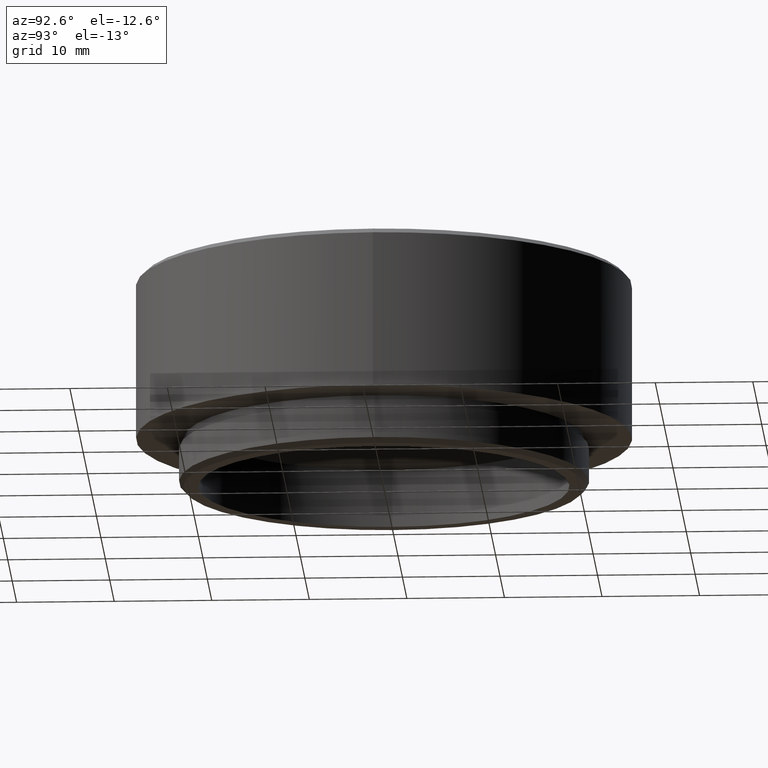
[diagram: clean part render]
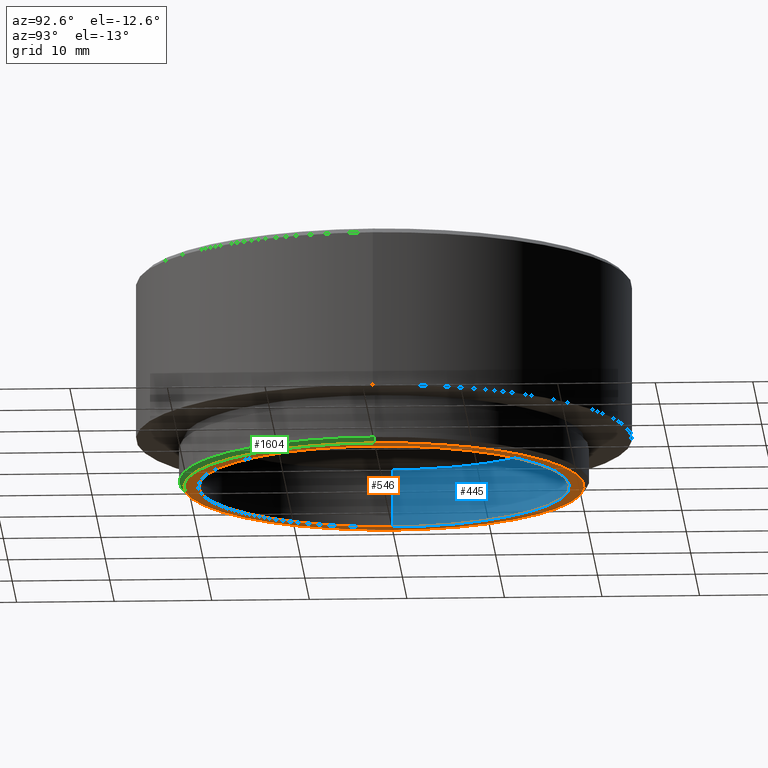
[diagram: same view with three faces highlighted in distinct colors, each labeled with its STEP entity id]
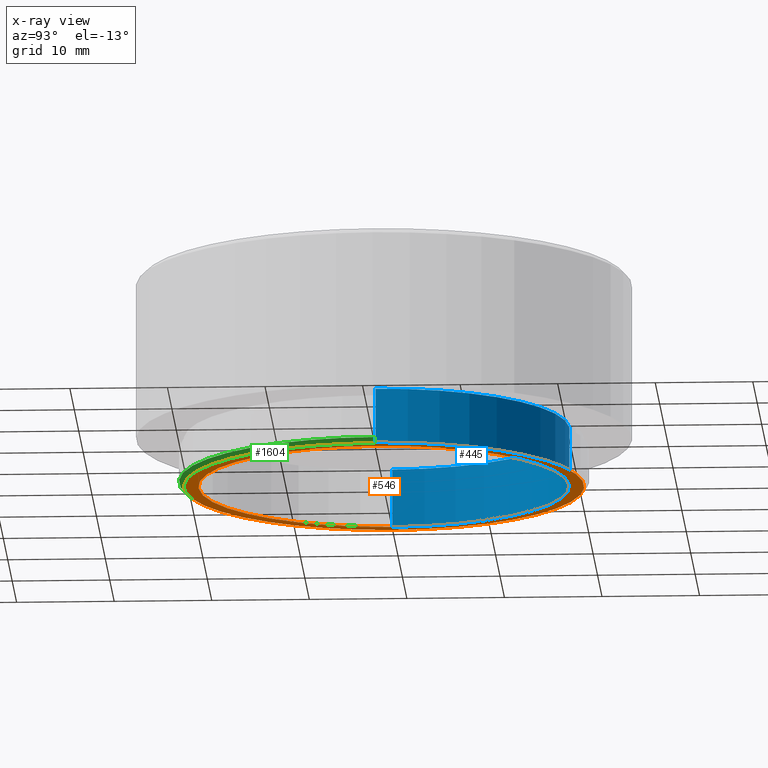
[diagram: x-ray of the same camera — body ghosted, the three highlighted faces saturated]
A machine part, auxiliary view with three faces highlighted in distinct colors.
The next image is the same camera in x-ray (body ghosted, the three faces saturated) — at least one of them is partly hidden behind the body in this view.
Their STEP definitions:

[orange] entity #546 — the highlighted planar face has unit normal (0, 0, 1).
#44 = AXIS2_PLACEMENT_3D ( 'NONE', #636, #1412, #1169 ) ;
#123 = DIRECTION ( 'NONE',  ( 1.000000000000000000, 0.000000000000000000, 0.000000000000000000 ) ) ;
#156 = ORIENTED_EDGE ( 'NONE', *, *, #462, .T. ) ;
#184 = DIRECTION ( 'NONE',  ( 0.000000000000000000, 0.000000000000000000, 1.000000000000000000 ) ) ;
#194 = VERTEX_POINT ( 'NONE', #1596 ) ;
#273 = CARTESIAN_POINT ( 'NONE',  ( 0.000000000000000000, 0.000000000000000000, 0.000000000000000000 ) ) ;
#324 = CARTESIAN_POINT ( 'NONE',  ( 0.000000000000000000, 0.000000000000000000, 0.000000000000000000 ) ) ;
#362 = FACE_BOUND ( 'NONE', #1002, .T. ) ;
#380 = ORIENTED_EDGE ( 'NONE', *, *, #452, .T. ) ;
#418 = AXIS2_PLACEMENT_3D ( 'NONE', #273, #1326, #123 ) ;
#449 = DIRECTION ( 'NONE',  ( 1.000000000000000000, 0.000000000000000000, 0.000000000000000000 ) ) ;
#452 = EDGE_CURVE ( 'NONE', #1217, #194, #1544, .T. ) ;
#462 = EDGE_CURVE ( 'NONE', #1559, #1170, #572, .T. ) ;
#519 = CARTESIAN_POINT ( 'NONE',  ( 19.00000000000000000, 2.326828918379970970E-15, 0.000000000000000000 ) ) ;
#546 = ADVANCED_FACE ( 'NONE', ( #1304, #362 ), #906, .F. ) ;
#572 = CIRCLE ( 'NONE', #661, 20.49999999999999645 ) ;
#636 = CARTESIAN_POINT ( 'NONE',  ( 0.000000000000000000, 0.000000000000000000, 0.000000000000000000 ) ) ;
#661 = AXIS2_PLACEMENT_3D ( 'NONE', #324, #1250, #981 ) ;
#692 = EDGE_LOOP ( 'NONE', ( #156, #867 ) ) ;
#703 = DIRECTION ( 'NONE',  ( 1.000000000000000000, 0.000000000000000000, 0.000000000000000000 ) ) ;
#867 = ORIENTED_EDGE ( 'NONE', *, *, #1697, .T. ) ;
#904 = CIRCLE ( 'NONE', #418, 20.49999999999999645 ) ;
#906 = PLANE ( 'NONE',  #44 ) ;
#962 = ORIENTED_EDGE ( 'NONE', *, *, #1121, .T. ) ;
#981 = DIRECTION ( 'NONE',  ( 1.000000000000000000, 0.000000000000000000, 0.000000000000000000 ) ) ;
#1002 = EDGE_LOOP ( 'NONE', ( #962, #380 ) ) ;
#1031 = AXIS2_PLACEMENT_3D ( 'NONE', #1669, #184, #703 ) ;
#1121 = EDGE_CURVE ( 'NONE', #194, #1217, #1622, .T. ) ;
#1169 = DIRECTION ( 'NONE',  ( 1.000000000000000000, 0.000000000000000000, -0.000000000000000000 ) ) ;
#1170 = VERTEX_POINT ( 'NONE', #1599 ) ;
#1217 = VERTEX_POINT ( 'NONE', #519 ) ;
#1250 = DIRECTION ( 'NONE',  ( -0.000000000000000000, -0.000000000000000000, -1.000000000000000000 ) ) ;
#1304 = FACE_OUTER_BOUND ( 'NONE', #692, .T. ) ;
#1326 = DIRECTION ( 'NONE',  ( -0.000000000000000000, -0.000000000000000000, -1.000000000000000000 ) ) ;
#1331 = CARTESIAN_POINT ( 'NONE',  ( 0.000000000000000000, 0.000000000000000000, 0.000000000000000000 ) ) ;
#1412 = DIRECTION ( 'NONE',  ( 0.000000000000000000, 0.000000000000000000, 1.000000000000000000 ) ) ;
#1527 = CARTESIAN_POINT ( 'NONE',  ( 20.49999999999999645, 0.000000000000000000, 0.000000000000000000 ) ) ;
#1544 = CIRCLE ( 'NONE', #1031, 19.00000000000000000 ) ;
#1559 = VERTEX_POINT ( 'NONE', #1527 ) ;
#1595 = AXIS2_PLACEMENT_3D ( 'NONE', #1331, #1672, #449 ) ;
#1596 = CARTESIAN_POINT ( 'NONE',  ( -19.00000000000000000, 0.000000000000000000, 0.000000000000000000 ) ) ;
#1599 = CARTESIAN_POINT ( 'NONE',  ( -20.49999999999999645, 2.541142108230757480E-15, 0.000000000000000000 ) ) ;
#1622 = CIRCLE ( 'NONE', #1595, 19.00000000000000000 ) ;
#1669 = CARTESIAN_POINT ( 'NONE',  ( 0.000000000000000000, 0.000000000000000000, 0.000000000000000000 ) ) ;
#1672 = DIRECTION ( 'NONE',  ( 0.000000000000000000, 0.000000000000000000, 1.000000000000000000 ) ) ;
#1697 = EDGE_CURVE ( 'NONE', #1170, #1559, #904, .T. ) ;

[blue] entity #445 — the highlighted cylindrical surface (partial cylindrical patch) has radius 19 mm, axis along (-0, -0, -1).
#1 = DIRECTION ( 'NONE',  ( 1.000000000000000000, 0.000000000000000000, 0.000000000000000000 ) ) ;
#16 = ORIENTED_EDGE ( 'NONE', *, *, #58, .F. ) ;
#58 = EDGE_CURVE ( 'NONE', #328, #1217, #200, .T. ) ;
#128 = ORIENTED_EDGE ( 'NONE', *, *, #452, .F. ) ;
#176 = DIRECTION ( 'NONE',  ( -1.000000000000000000, 0.000000000000000000, 0.000000000000000000 ) ) ;
#184 = DIRECTION ( 'NONE',  ( 0.000000000000000000, 0.000000000000000000, 1.000000000000000000 ) ) ;
#194 = VERTEX_POINT ( 'NONE', #1596 ) ;
#200 = LINE ( 'NONE', #729, #1308 ) ;
#242 = CIRCLE ( 'NONE', #319, 19.00000000000000000 ) ;
#304 = LINE ( 'NONE', #568, #603 ) ;
#319 = AXIS2_PLACEMENT_3D ( 'NONE', #1744, #933, #1 ) ;
#328 = VERTEX_POINT ( 'NONE', #1700 ) ;
#445 = ADVANCED_FACE ( 'NONE', ( #861 ), #579, .F. ) ;
#452 = EDGE_CURVE ( 'NONE', #1217, #194, #1544, .T. ) ;
#519 = CARTESIAN_POINT ( 'NONE',  ( 19.00000000000000000, 2.326828918379970970E-15, 0.000000000000000000 ) ) ;
#568 = CARTESIAN_POINT ( 'NONE',  ( -19.00000000000000000, 0.000000000000000000, 21.50000000000000000 ) ) ;
#579 = CYLINDRICAL_SURFACE ( 'NONE', #631, 19.00000000000000000 ) ;
#603 = VECTOR ( 'NONE', #1374, 1000.000000000000000 ) ;
#631 = AXIS2_PLACEMENT_3D ( 'NONE', #1530, #868, #176 ) ;
#703 = DIRECTION ( 'NONE',  ( 1.000000000000000000, 0.000000000000000000, 0.000000000000000000 ) ) ;
#728 = CARTESIAN_POINT ( 'NONE',  ( -19.00000000000000000, 0.000000000000000000, 5.999999999999998224 ) ) ;
#729 = CARTESIAN_POINT ( 'NONE',  ( 19.00000000000000000, 2.326828918379970970E-15, 21.50000000000000000 ) ) ;
#737 = EDGE_LOOP ( 'NONE', ( #16, #1485, #1687, #128 ) ) ;
#861 = FACE_OUTER_BOUND ( 'NONE', #737, .T. ) ;
#868 = DIRECTION ( 'NONE',  ( -0.000000000000000000, -0.000000000000000000, -1.000000000000000000 ) ) ;
#933 = DIRECTION ( 'NONE',  ( 0.000000000000000000, 0.000000000000000000, 1.000000000000000000 ) ) ;
#1031 = AXIS2_PLACEMENT_3D ( 'NONE', #1669, #184, #703 ) ;
#1199 = EDGE_CURVE ( 'NONE', #328, #1594, #242, .T. ) ;
#1217 = VERTEX_POINT ( 'NONE', #519 ) ;
#1276 = DIRECTION ( 'NONE',  ( -0.000000000000000000, -0.000000000000000000, -1.000000000000000000 ) ) ;
#1308 = VECTOR ( 'NONE', #1276, 1000.000000000000000 ) ;
#1374 = DIRECTION ( 'NONE',  ( -0.000000000000000000, -0.000000000000000000, -1.000000000000000000 ) ) ;
#1485 = ORIENTED_EDGE ( 'NONE', *, *, #1199, .T. ) ;
#1520 = EDGE_CURVE ( 'NONE', #1594, #194, #304, .T. ) ;
#1530 = CARTESIAN_POINT ( 'NONE',  ( 0.000000000000000000, 0.000000000000000000, 21.50000000000000000 ) ) ;
#1544 = CIRCLE ( 'NONE', #1031, 19.00000000000000000 ) ;
#1594 = VERTEX_POINT ( 'NONE', #728 ) ;
#1596 = CARTESIAN_POINT ( 'NONE',  ( -19.00000000000000000, 0.000000000000000000, 0.000000000000000000 ) ) ;
#1669 = CARTESIAN_POINT ( 'NONE',  ( 0.000000000000000000, 0.000000000000000000, 0.000000000000000000 ) ) ;
#1687 = ORIENTED_EDGE ( 'NONE', *, *, #1520, .T. ) ;
#1700 = CARTESIAN_POINT ( 'NONE',  ( 19.00000000000000000, 2.326828918379970970E-15, 5.999999999999998224 ) ) ;
#1744 = CARTESIAN_POINT ( 'NONE',  ( 0.000000000000000000, 0.000000000000000000, 5.999999999999998224 ) ) ;

[green] entity #1604 — the highlighted conical surface has half-angle 45 deg.
#18 = ORIENTED_EDGE ( 'NONE', *, *, #1500, .T. ) ;
#74 = AXIS2_PLACEMENT_3D ( 'NONE', #78, #1690, #360 ) ;
#78 = CARTESIAN_POINT ( 'NONE',  ( 0.000000000000000000, 0.000000000000000000, 0.000000000000000000 ) ) ;
#180 = CARTESIAN_POINT ( 'NONE',  ( 20.49999999999999645, 0.000000000000000000, 0.000000000000000000 ) ) ;
#213 = VERTEX_POINT ( 'NONE', #246 ) ;
#246 = CARTESIAN_POINT ( 'NONE',  ( -21.00000000000000000, 0.000000000000000000, 0.4999999999999970024 ) ) ;
#324 = CARTESIAN_POINT ( 'NONE',  ( 0.000000000000000000, 0.000000000000000000, 0.000000000000000000 ) ) ;
#337 = EDGE_CURVE ( 'NONE', #213, #900, #1736, .T. ) ;
#360 = DIRECTION ( 'NONE',  ( 1.000000000000000000, 0.000000000000000000, 0.000000000000000000 ) ) ;
#462 = EDGE_CURVE ( 'NONE', #1559, #1170, #572, .T. ) ;
#469 = ORIENTED_EDGE ( 'NONE', *, *, #1340, .F. ) ;
#517 = LINE ( 'NONE', #642, #1369 ) ;
#552 = ORIENTED_EDGE ( 'NONE', *, *, #337, .F. ) ;
#572 = CIRCLE ( 'NONE', #661, 20.49999999999999645 ) ;
#642 = CARTESIAN_POINT ( 'NONE',  ( -20.49999999999999645, 2.510525938252074087E-15, 0.000000000000000000 ) ) ;
#661 = AXIS2_PLACEMENT_3D ( 'NONE', #324, #1250, #981 ) ;
#682 = LINE ( 'NONE', #180, #817 ) ;
#817 = VECTOR ( 'NONE', #985, 999.9999999999998863 ) ;
#900 = VERTEX_POINT ( 'NONE', #1618 ) ;
#967 = AXIS2_PLACEMENT_3D ( 'NONE', #1661, #1292, #1431 ) ;
#981 = DIRECTION ( 'NONE',  ( 1.000000000000000000, 0.000000000000000000, 0.000000000000000000 ) ) ;
#985 = DIRECTION ( 'NONE',  ( 0.7071067811865525687, 0.000000000000000000, 0.7071067811865425767 ) ) ;
#1004 = FACE_OUTER_BOUND ( 'NONE', #1491, .T. ) ;
#1142 = CONICAL_SURFACE ( 'NONE', #74, 20.49999999999999645, 0.7853981633974552734 ) ;
#1170 = VERTEX_POINT ( 'NONE', #1599 ) ;
#1185 = DIRECTION ( 'NONE',  ( -0.7071067811865525687, 8.659560562354994488E-17, 0.7071067811865425767 ) ) ;
#1250 = DIRECTION ( 'NONE',  ( -0.000000000000000000, -0.000000000000000000, -1.000000000000000000 ) ) ;
#1292 = DIRECTION ( 'NONE',  ( 0.000000000000000000, 0.000000000000000000, 1.000000000000000000 ) ) ;
#1340 = EDGE_CURVE ( 'NONE', #1170, #213, #517, .T. ) ;
#1369 = VECTOR ( 'NONE', #1185, 999.9999999999998863 ) ;
#1431 = DIRECTION ( 'NONE',  ( 1.000000000000000000, 0.000000000000000000, 0.000000000000000000 ) ) ;
#1435 = ORIENTED_EDGE ( 'NONE', *, *, #462, .F. ) ;
#1491 = EDGE_LOOP ( 'NONE', ( #469, #1435, #18, #552 ) ) ;
#1500 = EDGE_CURVE ( 'NONE', #1559, #900, #682, .T. ) ;
#1527 = CARTESIAN_POINT ( 'NONE',  ( 20.49999999999999645, 0.000000000000000000, 0.000000000000000000 ) ) ;
#1559 = VERTEX_POINT ( 'NONE', #1527 ) ;
#1599 = CARTESIAN_POINT ( 'NONE',  ( -20.49999999999999645, 2.541142108230757480E-15, 0.000000000000000000 ) ) ;
#1604 = ADVANCED_FACE ( 'NONE', ( #1004 ), #1142, .T. ) ;
#1618 = CARTESIAN_POINT ( 'NONE',  ( 21.00000000000000000, 2.571758278209441661E-15, 0.4999999999999970024 ) ) ;
#1661 = CARTESIAN_POINT ( 'NONE',  ( 0.000000000000000000, 0.000000000000000000, 0.4999999999999970024 ) ) ;
#1690 = DIRECTION ( 'NONE',  ( 0.000000000000000000, 0.000000000000000000, 1.000000000000000000 ) ) ;
#1736 = CIRCLE ( 'NONE', #967, 21.00000000000000000 ) ;